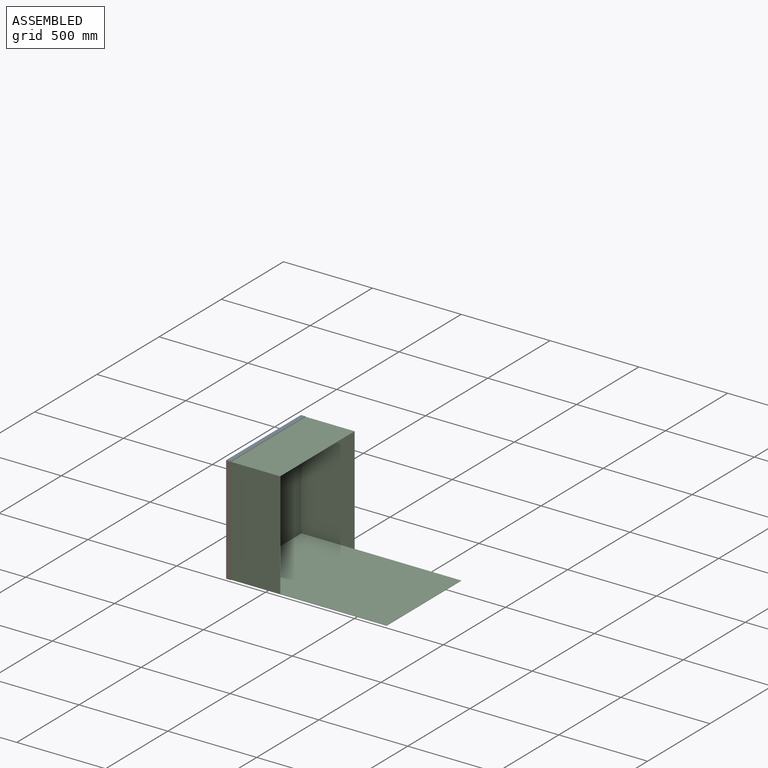
[diagram: assembled view]
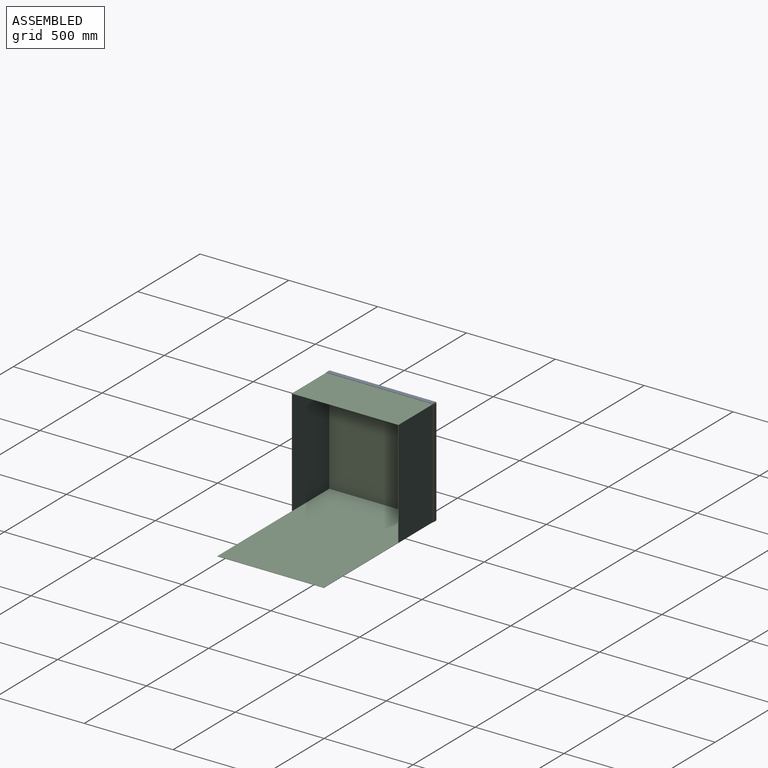
[diagram: assembled view, second angle]
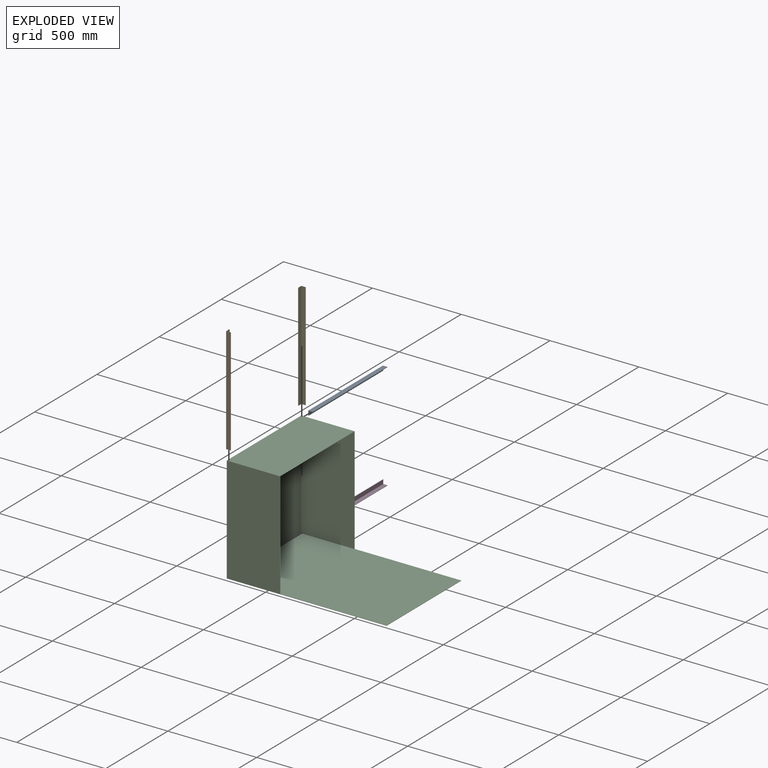
[diagram: exploded view]
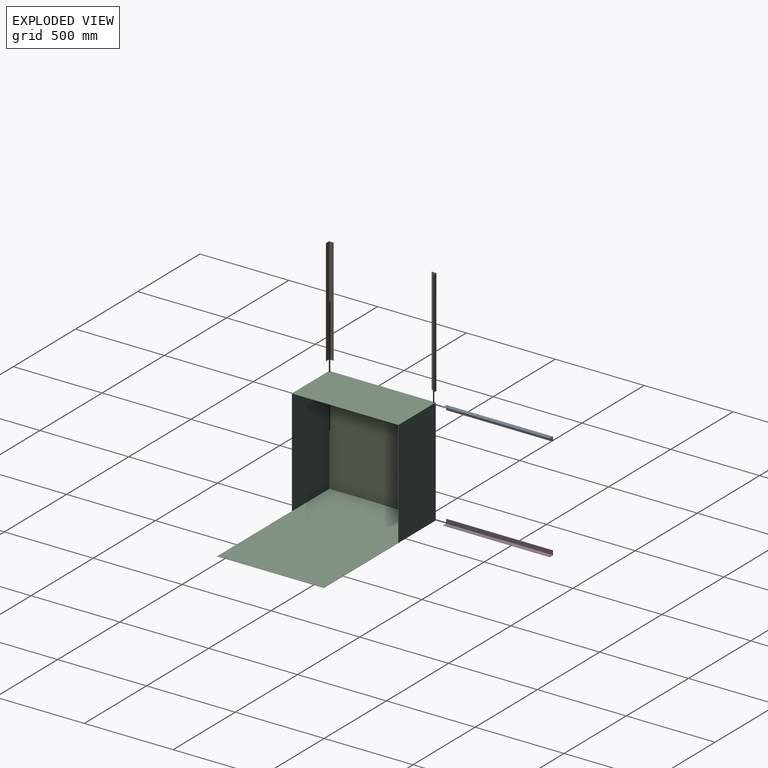
[diagram: exploded view, second angle]
ASSEMBLY  parts=5 mates=4
PART A: 8 faces, bbox 25.4x600x25.4 mm
  f0: plane 600x25.4mm, normal (0,0,-1), area 15240mm2, adj f1,f5,f6,f7
  f1: plane 600x2mm, normal (1,0,0), area 1200mm2, adj f0,f2,f6,f7
  f2: plane 600x23.4mm, normal (0,0,1), area 14040mm2, adj f1,f3,f6,f7
  f3: plane 600x23.4mm, normal (1,0,0), area 14040mm2, adj f2,f4,f6,f7
  f4: plane 600x2mm, normal (0,0,1), area 1200mm2, adj f3,f5,f6,f7
  f5: plane 600x25.4mm, normal (-1,0,0), area 15240mm2, adj f0,f4,f6,f7
  f6: plane 25.4x25.4mm, normal (0,-1,0), area 97.6mm2, adj f0,f1,f2,f3,f4,f5
  f7: plane 25.4x25.4mm, normal (0,1,0), area 97.6mm2, adj f0,f1,f2,f3,f4,f5
PART B: same geometry as A
PART C: 12 faces, bbox 600x600x900 mm
  f0: plane 600x598.48mm, normal (0,0,1), area 2726.8mm2, adj f1,f2,f3,f6,f7,f8,f9
  f1: plane 900x600mm, normal (-1,0,0), area 180912mm2, adj f0,f2,f4,f5,f9,f11
  f2: plane 600x300mm, normal (0,-1,0), area 180000mm2, adj f0,f1,f3,f5
  f3: plane 900x600mm, normal (1,0,0), area 180912mm2, adj f0,f2,f4,f5,f9,f11
  f4: plane 900x600mm, normal (0,1,0), area 540000mm2, adj f1,f3,f5,f11
  f5: plane 600x600mm, normal (0,0,-1), area 360000mm2, adj f1,f2,f3,f4
  f6: plane 596.96x298.48mm, normal (1,0,0), area 178180.6mm2, adj f0,f7,f9,f10
  f7: plane 596.96x298.48mm, normal (0,1,0), area 178180.6mm2, adj f0,f6,f8,f10
  f8: plane 596.96x298.48mm, normal (-1,0,0), area 178180.6mm2, adj f0,f7,f9,f10
  f9: plane 898.48x600mm, normal (0,-1,0), area 538180.6mm2, adj f0,f1,f3,f6,f8,f10,f11
  f10: plane 596.96x596.96mm, normal (0,0,1), area 356361.2mm2, adj f6,f7,f8,f9
  f11: plane 600x1.52mm, normal (0,0,1), area 912mm2, adj f1,f3,f4,f9
PART D: same geometry as A
PART E: same geometry as A
PLACE A rot(axis=(0,1,0),90deg) t=(-708.96,-216.92,393.2)mm
PLACE B rot(axis=(0.58,0.58,0.58),120deg) t=(-708.96,-43.23,566.89)mm
PLACE C rot(axis=(-0.58,0.58,-0.58),120deg) t=(-706.96,-252.27,575.75)mm
PLACE D t=(-233.26,-216.92,264.89)mm
PLACE E rot(axis=(-0.58,0.58,-0.58),120deg) t=(-708.96,-390.62,566.89)mm
MATE fastened C.f1 <-> D.f7  axis (0,-1,0) through (-706.96,83.08,266.89)mm
MATE fastened C.f3 <-> A.f6  axis (0,-1,0) through (-706.96,-516.92,866.89)mm
MATE fastened E.f6 <-> C.f2  axis (0,0,-1) through (-706.96,83.08,866.89)mm
MATE fastened C.f4 <-> B.f6  axis (0,0,-1) through (-706.96,-516.92,266.89)mm
